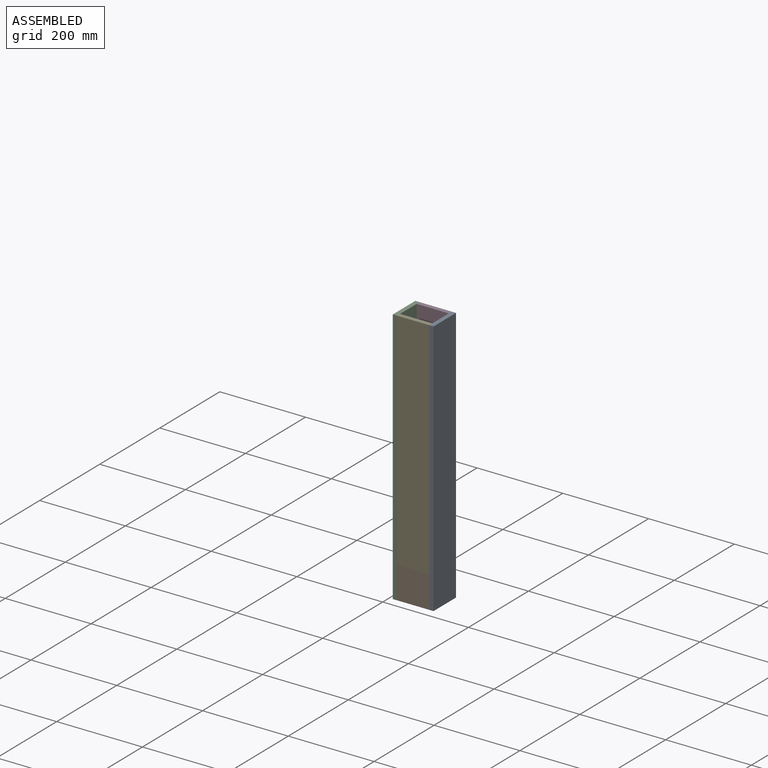
[diagram: assembled view]
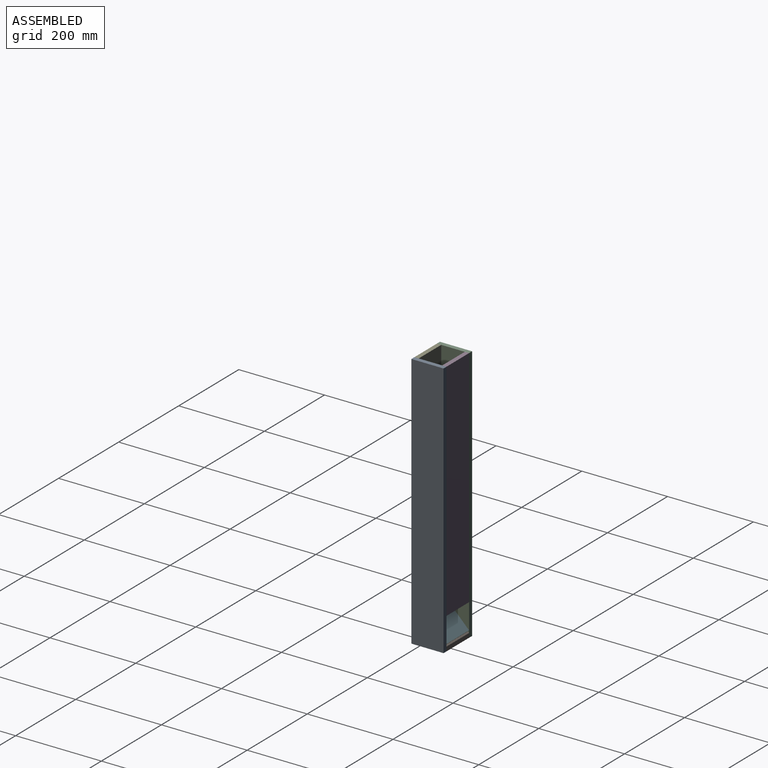
[diagram: assembled view, second angle]
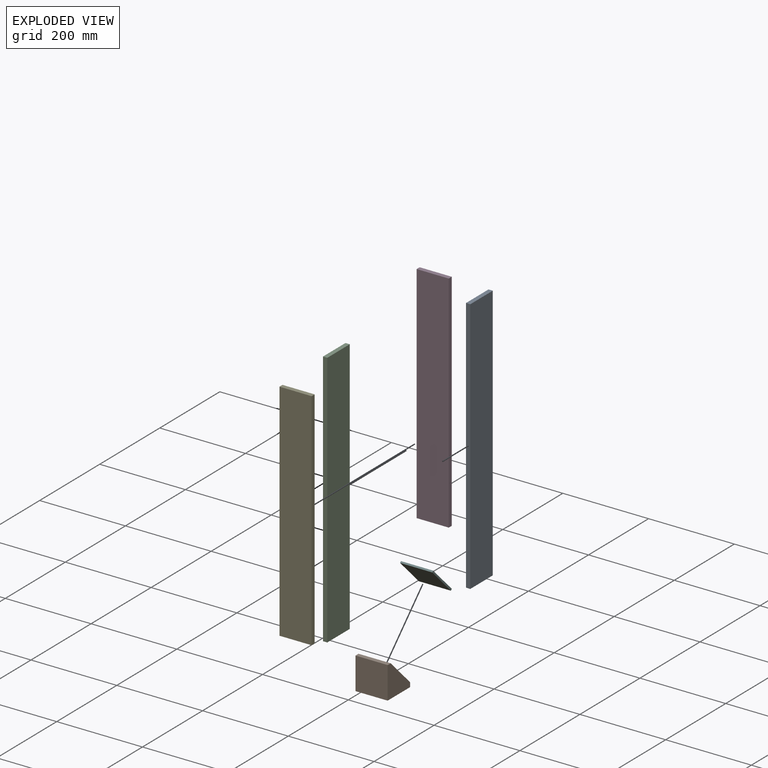
[diagram: exploded view]
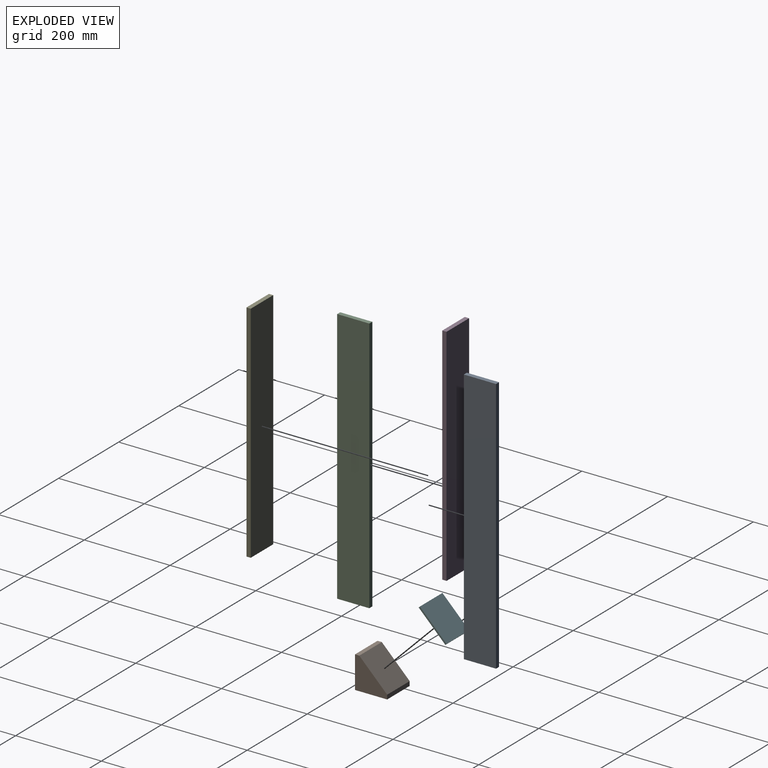
[diagram: exploded view, second angle]
ASSEMBLY  parts=6 mates=5
PART A: 6 faces, bbox 10x75x600 mm
  f0: plane 75x10mm, normal (0,0,1), area 750mm2, adj f1,f3,f4,f5
  f1: plane 600x10mm, normal (0,-1,0), area 6000mm2, adj f0,f2,f4,f5
  f2: plane 75x10mm, normal (0,0,-1), area 750mm2, adj f1,f3,f4,f5
  f3: plane 600x10mm, normal (0,1,0), area 6000mm2, adj f0,f2,f4,f5
  f4: plane 600x75mm, normal (1,0,0), area 45000mm2, adj f0,f1,f2,f3
  f5: plane 600x75mm, normal (-1,0,0), area 45000mm2, adj f0,f1,f2,f3
PART B: 7 faces, bbox 75x75x75 mm
  f0: plane 75x75mm, normal (0,1,0), area 5625mm2, adj f1,f4,f5,f6
  f1: plane 75x75mm, normal (0,0,1), area 5625mm2, adj f0,f2,f5,f6
  f2: plane 75x10mm, normal (0,-1,0), area 750mm2, adj f1,f3,f5,f6
  f3: plane 75x65mm, normal (0,-0.71,-0.71), area 6894.3mm2, adj f2,f4,f5,f6
  f4: plane 75x10mm, normal (0,0,-1), area 750mm2, adj f0,f3,f5,f6
  f5: plane 75x75mm, normal (1,0,0), area 3512.5mm2, adj f0,f1,f2,f3,f4
  f6: plane 75x75mm, normal (-1,0,0), area 3512.5mm2, adj f0,f1,f2,f3,f4
PART C: same geometry as A
PART D: 6 faces, bbox 10x75x525 mm
  f0: plane 75x10mm, normal (0,0,1), area 750mm2, adj f1,f3,f4,f5
  f1: plane 525x10mm, normal (0,-1,0), area 5250mm2, adj f0,f2,f4,f5
  f2: plane 75x10mm, normal (0,0,-1), area 750mm2, adj f1,f3,f4,f5
  f3: plane 525x10mm, normal (0,1,0), area 5250mm2, adj f0,f2,f4,f5
  f4: plane 525x75mm, normal (1,0,0), area 39375mm2, adj f0,f1,f2,f3
  f5: plane 525x75mm, normal (-1,0,0), area 39375mm2, adj f0,f1,f2,f3
PART E: same geometry as D
PART F: 6 faces, bbox 75x4x88 mm
  f0: plane 88x4mm, normal (1,0,0), area 352mm2, adj f1,f3,f4,f5
  f1: plane 75x4mm, normal (0,0,1), area 300mm2, adj f0,f2,f4,f5
  f2: plane 88x4mm, normal (-1,0,0), area 352mm2, adj f1,f3,f4,f5
  f3: plane 75x4mm, normal (0,0,-1), area 300mm2, adj f0,f2,f4,f5
  f4: plane 88x75mm, normal (0,-1,0), area 6600mm2, adj f0,f1,f2,f3
  f5: plane 88x75mm, normal (0,1,0), area 6600mm2, adj f0,f1,f2,f3
PLACE A t=(80,0,0)mm
PLACE B rot(axis=(1,0,0),180deg) t=(37.5,-37.5,-300)mm
PLACE C t=(-5,0,0)mm
PLACE D rot(axis=(0,0,-1),90deg) t=(37.5,32.5,37.5)mm
PLACE E rot(axis=(0,0,-1),90deg) t=(37.5,-32.5,37.5)mm
PLACE F rot(axis=(1,0,0),45deg) t=(37.5,6.44,-253.28)mm
MATE fastened B.f3 <-> F.f4  axis (0,0.71,0.71) through (75,-27.5,-225)mm
MATE fastened A.f0 <-> D.f0  axis (0,0,1) through (75,37.5,300)mm
MATE fastened C.f1 <-> E.f4  axis (0,-1,0) through (0,-37.5,300)mm
MATE fastened B.f0 <-> C.f1  axis (0,-1,0) through (0,-37.5,-300)mm
MATE fastened E.f4 <-> A.f1  axis (0,-1,0) through (75,-37.5,300)mm
